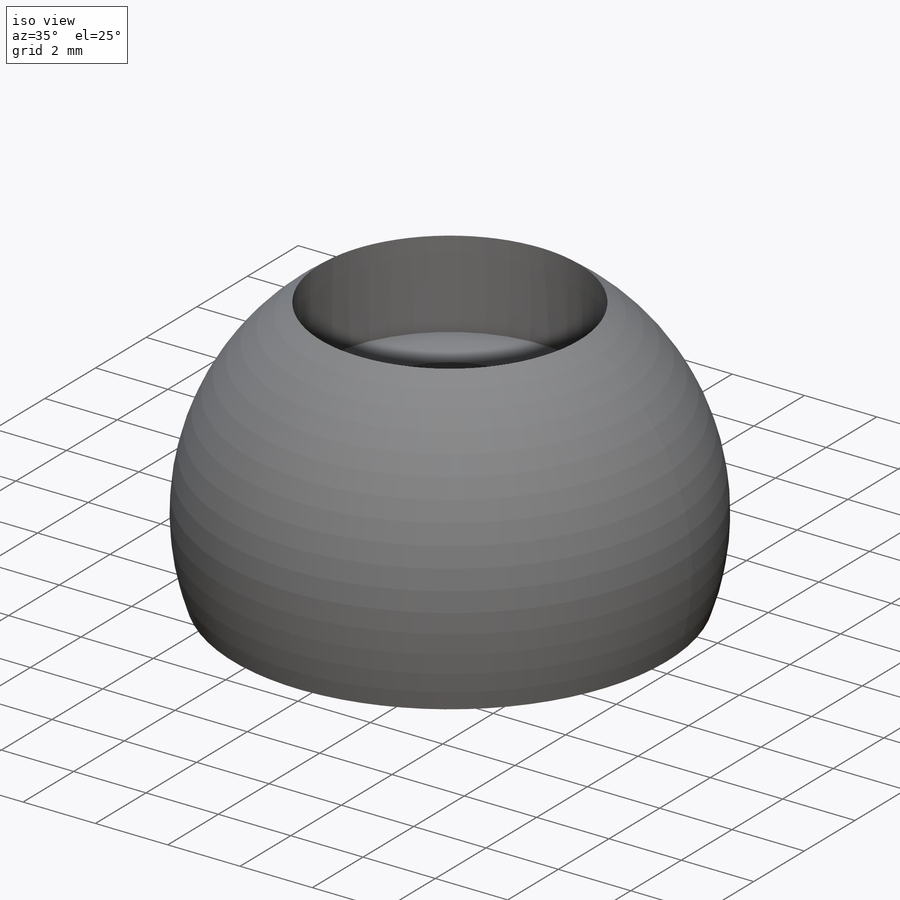
[diagram: iso view]
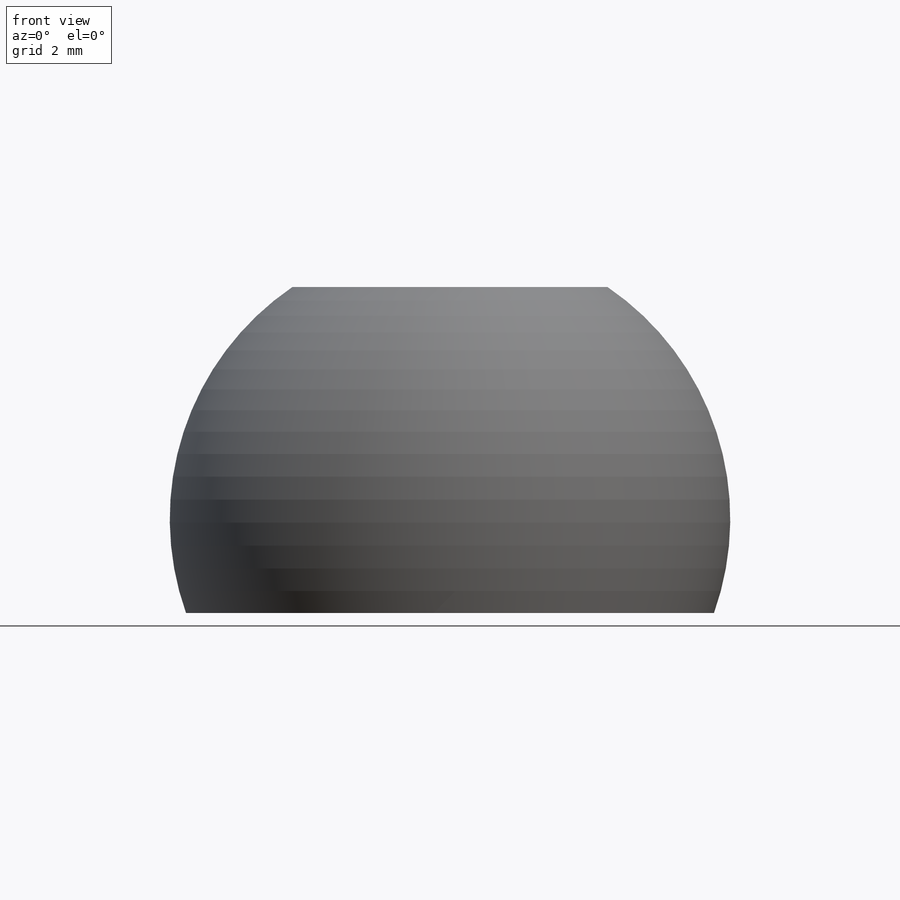
[diagram: front view]
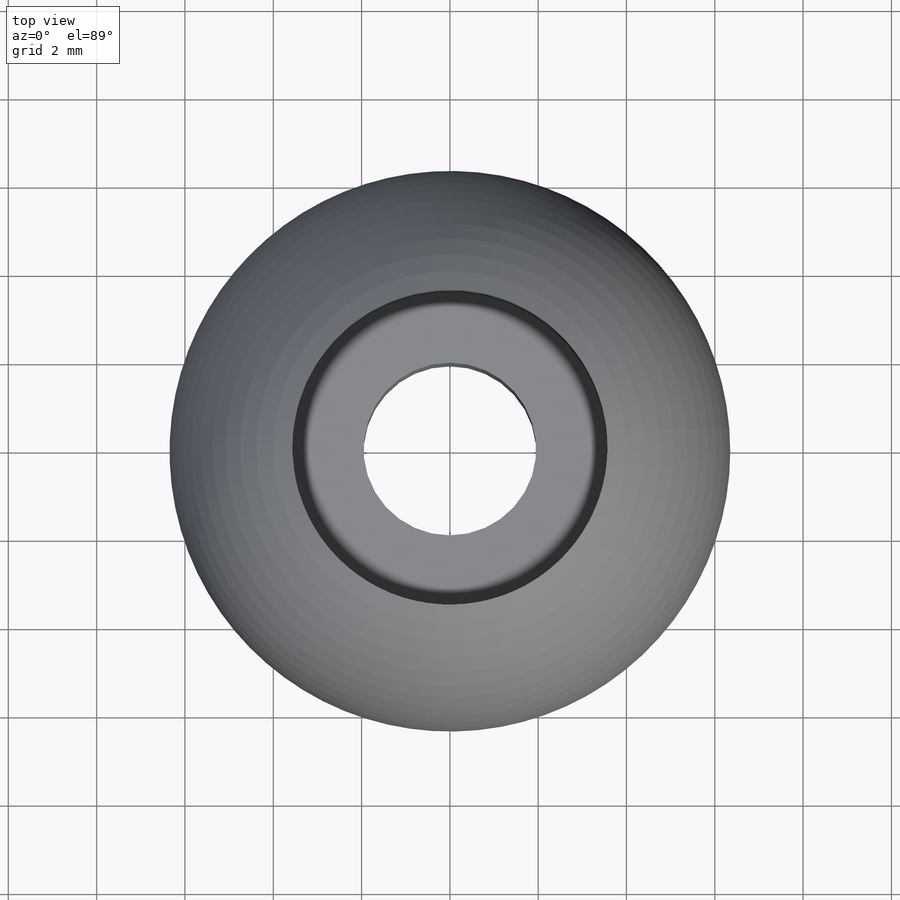
[diagram: top view]
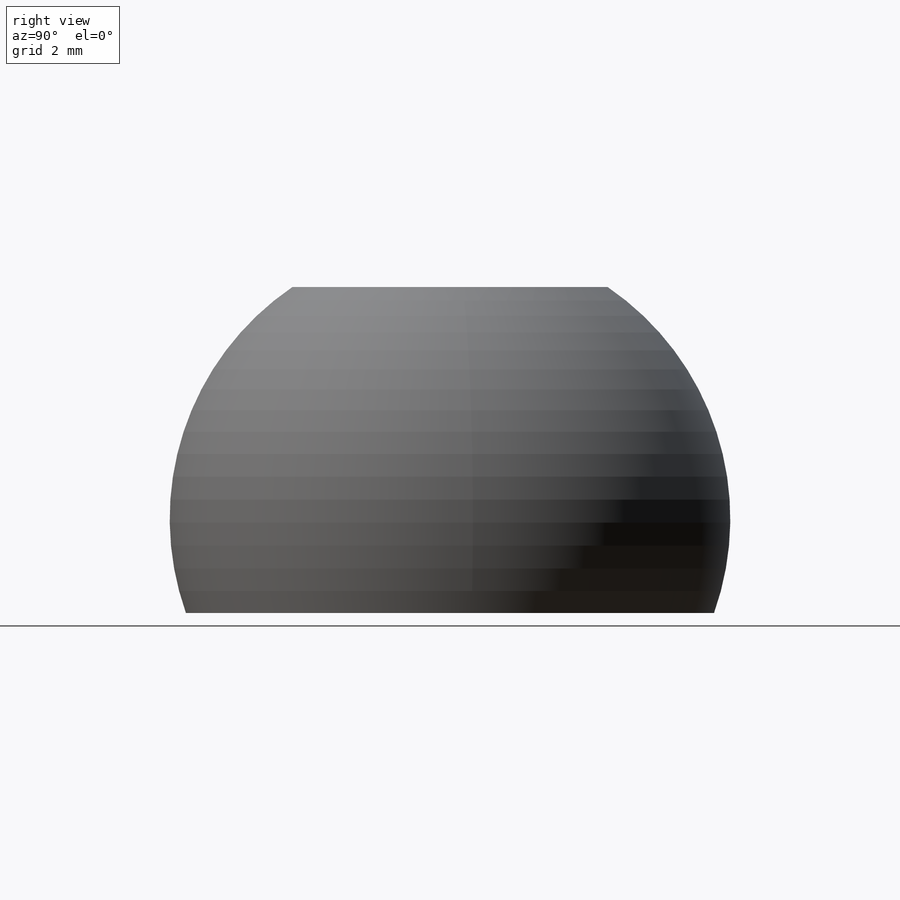
[diagram: right view]
SOLIDWORKS PART (.sldprt)
format: sldprt  version: not decoded by parser v0  size: 1,542,656 bytes
history: native  units: mm
features: sketch x8, cut_revolve x4, plane x3, cut_extrude x3, material x1, revolve x1 + 3 further entries (+9 scaffold rows collapsed)
feature tree (32):
  scaffold x9  (default folders/planes/origin — collapsed)
  material  "Stainless Steel 440C 58Rc"
  plane  "Plane X-Y"
  plane  "Plane X-Z"
  plane  "Plane Y-Z"
  "Design Table"
  "Axis - Y"
  "Axis - Z"
  sketch  "Sketch1"  dims[Ball_Diameter=12.7mm D2=25.4mm]
  revolve  "Complete_Ball"  Angle=360deg
  sketch  "Sketch2"  dims[D1=~11.961647mm Truncated_height=8.4836mm]
  cut_extrude  "Truncated_ball"  [1 undecoded]
  sketch  "Sketch3"  dims[Recess_diameter=8.255mm]
  cut_extrude  "Recessed"  Depth=0.127mm
  sketch  "Sketch5"  dims[D1=7.1374mm Thru_hole_dia=3.9116mm Counterbore_depth=3.5052mm Counterbore_dia=7.1374mm]
  cut_revolve  "Counterbored_hole"  Angle=360deg
  sketch  "Sketch6"  dims[D1=3.9116mm D2=7.1374mm D3=3.5052mm]
  cut_revolve  "Full_ball_CtBored_hole"  Angle=360deg
  sketch  "Sketch7"  dims[D1=3.175mm D2=6.35mm]
  cut_revolve  "Ball_w_concentric_hole"  Angle=360deg
  sketch  "Sketch8"  dims[D1=4.7625mm D2=3.175mm]
  cut_revolve  "Truncated_ball_w_blind_hole"  Angle=360deg
  sketch  "Sketch9"  dims[D1=0.9525mm]
  cut_extrude  "Cut-Extrude1"  Depth=0.127mm
decode coverage: 15 of 16 modeling features carry decoded parameters; 3 rows unclassified (native names shown)
note: ~ marks probable driven/reference dimensions
note: 1 parameter value undecoded
note: suppression state not decoded; provenance and decode notes live in map.json
